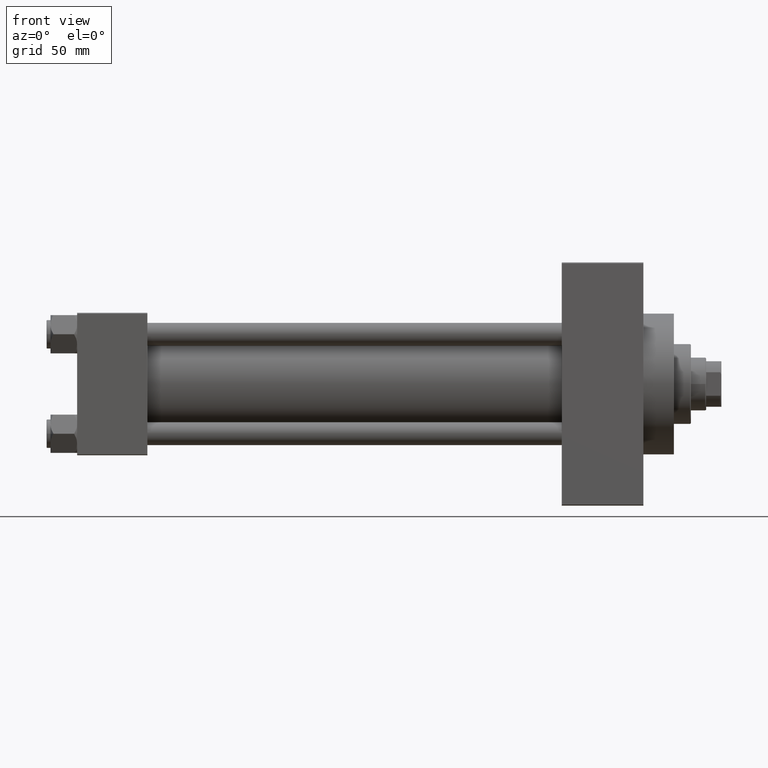
[diagram: clean part render]
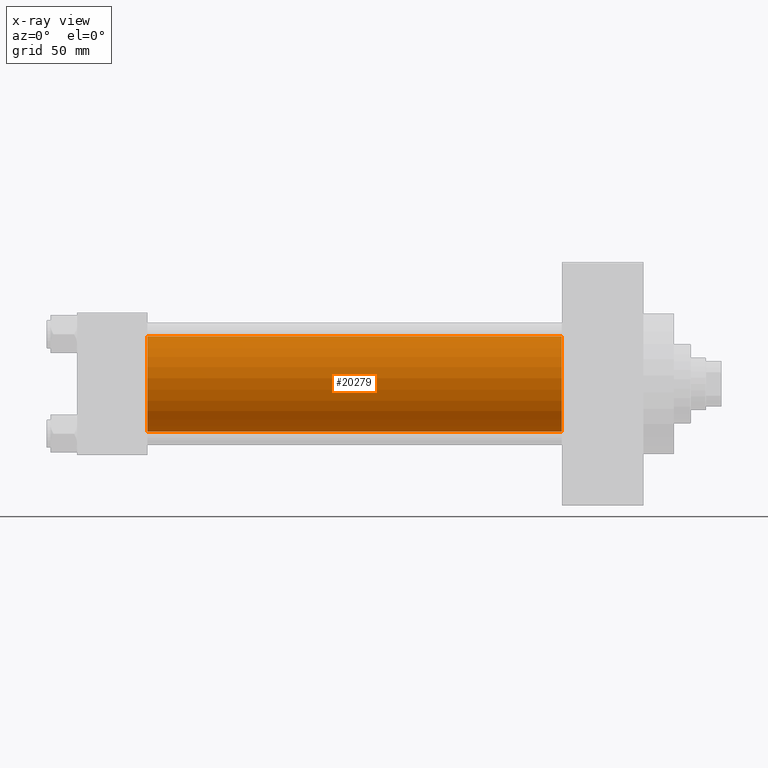
[diagram: x-ray — body ghosted, one internal face saturated and labeled with its STEP entity id]
A machine part, front view, then the same camera in x-ray: the body is ghosted and one INTERNAL B-rep face — a face not visible from any outside direction — is saturated and labeled: STEP entity #20279.
In plain terms, the highlighted cylindrical surface (partial cylindrical patch) has radius 25 mm, axis along (-1, -0, -0).
Its self-contained STEP definition (entity closure, byte-faithful):
#1975 = LINE ( 'NONE', #9160, #26825 ) ;
#2401 = DIRECTION ( 'NONE',  ( 0.000000000000000000, 0.000000000000000000, -1.000000000000000000 ) ) ;
#3518 = EDGE_CURVE ( 'NONE', #36011, #27723, #46446, .T. ) ;
#4735 = EDGE_CURVE ( 'NONE', #27723, #18250, #13559, .T. ) ;
#6365 = CARTESIAN_POINT ( 'NONE',  ( 255.0000000000000000, -2.602085213965210642E-15, 25.00000000000000000 ) ) ;
#9160 = CARTESIAN_POINT ( 'NONE',  ( 255.0000000000000000, 4.595317839031724996E-16, -25.00000000000000000 ) ) ;
#10048 = AXIS2_PLACEMENT_3D ( 'NONE', #39494, #10867, #21600 ) ;
#10163 = DIRECTION ( 'NONE',  ( -1.000000000000000000, -0.000000000000000000, -0.000000000000000000 ) ) ;
#10867 = DIRECTION ( 'NONE',  ( 1.000000000000000000, 0.000000000000000000, 0.000000000000000000 ) ) ;
#13559 = CIRCLE ( 'NONE', #37212, 25.00000000000000000 ) ;
#14073 = EDGE_CURVE ( 'NONE', #30515, #18250, #1975, .T. ) ;
#14093 = CARTESIAN_POINT ( 'NONE',  ( 37.00000000000000000, 4.595317839031724996E-16, -25.00000000000000000 ) ) ;
#15016 = FACE_OUTER_BOUND ( 'NONE', #36432, .T. ) ;
#15967 = ORIENTED_EDGE ( 'NONE', *, *, #14073, .T. ) ;
#17836 = EDGE_CURVE ( 'NONE', #36011, #30515, #23795, .T. ) ;
#18250 = VERTEX_POINT ( 'NONE', #14093 ) ;
#20279 = ADVANCED_FACE ( 'NONE', ( #15016 ), #22905, .F. ) ;
#21154 = VECTOR ( 'NONE', #10163, 1000.000000000000000 ) ;
#21600 = DIRECTION ( 'NONE',  ( 0.000000000000000000, 0.000000000000000000, -1.000000000000000000 ) ) ;
#22406 = ORIENTED_EDGE ( 'NONE', *, *, #4735, .F. ) ;
#22905 = CYLINDRICAL_SURFACE ( 'NONE', #24602, 25.00000000000000000 ) ;
#23795 = CIRCLE ( 'NONE', #10048, 25.00000000000000000 ) ;
#24602 = AXIS2_PLACEMENT_3D ( 'NONE', #29808, #40559, #33636 ) ;
#26825 = VECTOR ( 'NONE', #31338, 1000.000000000000000 ) ;
#27723 = VERTEX_POINT ( 'NONE', #43994 ) ;
#28294 = CARTESIAN_POINT ( 'NONE',  ( 255.0000000000000000, -2.602085213965210642E-15, 25.00000000000000000 ) ) ;
#28689 = ORIENTED_EDGE ( 'NONE', *, *, #3518, .F. ) ;
#29808 = CARTESIAN_POINT ( 'NONE',  ( 255.0000000000000000, -2.602085213965210642E-15, 0.000000000000000000 ) ) ;
#30515 = VERTEX_POINT ( 'NONE', #47020 ) ;
#31338 = DIRECTION ( 'NONE',  ( -1.000000000000000000, -0.000000000000000000, -0.000000000000000000 ) ) ;
#31751 = DIRECTION ( 'NONE',  ( 1.000000000000000000, 0.000000000000000000, 0.000000000000000000 ) ) ;
#33636 = DIRECTION ( 'NONE',  ( 0.000000000000000000, 0.000000000000000000, 1.000000000000000000 ) ) ;
#33638 = ORIENTED_EDGE ( 'NONE', *, *, #17836, .T. ) ;
#36011 = VERTEX_POINT ( 'NONE', #6365 ) ;
#36432 = EDGE_LOOP ( 'NONE', ( #33638, #15967, #22406, #28689 ) ) ;
#37212 = AXIS2_PLACEMENT_3D ( 'NONE', #39600, #31751, #2401 ) ;
#39494 = CARTESIAN_POINT ( 'NONE',  ( 255.0000000000000000, -2.602085213965210642E-15, 0.000000000000000000 ) ) ;
#39600 = CARTESIAN_POINT ( 'NONE',  ( 37.00000000000000000, -2.602085213965210642E-15, 0.000000000000000000 ) ) ;
#40559 = DIRECTION ( 'NONE',  ( -1.000000000000000000, -0.000000000000000000, -0.000000000000000000 ) ) ;
#43994 = CARTESIAN_POINT ( 'NONE',  ( 37.00000000000000000, -2.602085213965210642E-15, 25.00000000000000000 ) ) ;
#46446 = LINE ( 'NONE', #28294, #21154 ) ;
#47020 = CARTESIAN_POINT ( 'NONE',  ( 255.0000000000000000, 4.595317839031724996E-16, -25.00000000000000000 ) ) ;